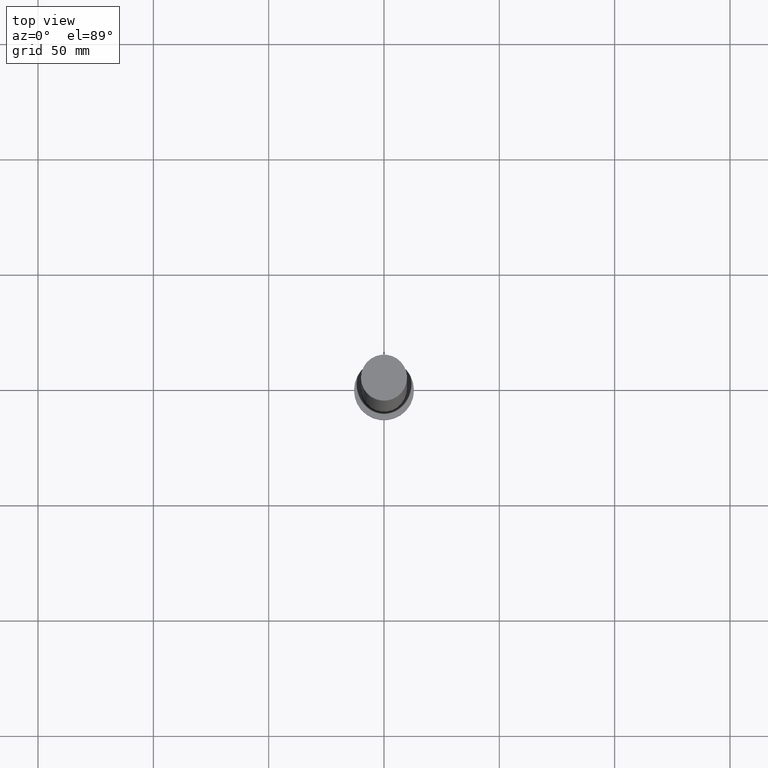
[diagram: clean part render]
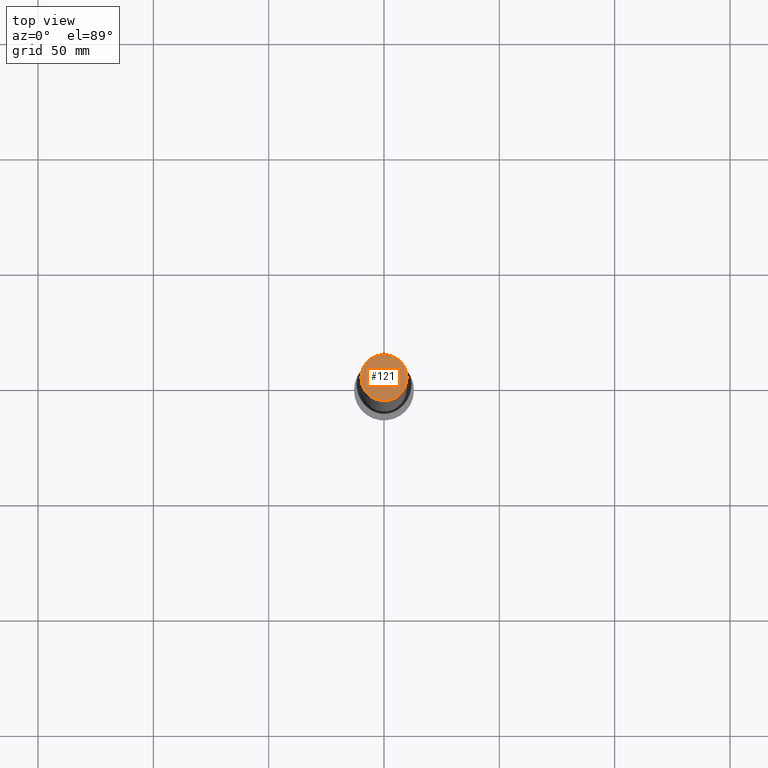
[diagram: same view with one face highlighted and labeled with its STEP entity id]
A machine part, top view. The second image highlights one B-rep face of the part: STEP entity #121.
In plain terms, the highlighted planar face has unit normal (0, 0, 1).
Its self-contained STEP definition (entity closure, byte-faithful):
#1 = CARTESIAN_POINT ( 'NONE',  ( -10.00000000000000178, 0.000000000000000000, 315.0000000000000000 ) ) ;
#11 = EDGE_CURVE ( 'NONE', #110, #94, #122, .T. ) ;
#25 = CARTESIAN_POINT ( 'NONE',  ( 0.000000000000000000, 0.000000000000000000, 315.0000000000000000 ) ) ;
#26 = ORIENTED_EDGE ( 'NONE', *, *, #11, .T. ) ;
#46 = DIRECTION ( 'NONE',  ( 0.000000000000000000, 0.000000000000000000, 1.000000000000000000 ) ) ;
#80 = CARTESIAN_POINT ( 'NONE',  ( 0.000000000000000000, 0.000000000000000000, 315.0000000000000000 ) ) ;
#94 = VERTEX_POINT ( 'NONE', #119 ) ;
#102 = CIRCLE ( 'NONE', #155, 10.00000000000000178 ) ;
#106 = ORIENTED_EDGE ( 'NONE', *, *, #168, .T. ) ;
#108 = EDGE_LOOP ( 'NONE', ( #26, #106 ) ) ;
#110 = VERTEX_POINT ( 'NONE', #1 ) ;
#119 = CARTESIAN_POINT ( 'NONE',  ( 10.00000000000000178, 1.224646799147353454E-15, 315.0000000000000000 ) ) ;
#121 = ADVANCED_FACE ( 'NONE', ( #174 ), #173, .T. ) ;
#122 = CIRCLE ( 'NONE', #253, 10.00000000000000178 ) ;
#123 = DIRECTION ( 'NONE',  ( 1.000000000000000000, 0.000000000000000000, -0.000000000000000000 ) ) ;
#127 = DIRECTION ( 'NONE',  ( 0.000000000000000000, 0.000000000000000000, 1.000000000000000000 ) ) ;
#142 = AXIS2_PLACEMENT_3D ( 'NONE', #80, #127, #123 ) ;
#144 = DIRECTION ( 'NONE',  ( 1.000000000000000000, 0.000000000000000000, 0.000000000000000000 ) ) ;
#155 = AXIS2_PLACEMENT_3D ( 'NONE', #25, #46, #144 ) ;
#163 = DIRECTION ( 'NONE',  ( 0.000000000000000000, 0.000000000000000000, 1.000000000000000000 ) ) ;
#168 = EDGE_CURVE ( 'NONE', #94, #110, #102, .T. ) ;
#173 = PLANE ( 'NONE',  #142 ) ;
#174 = FACE_OUTER_BOUND ( 'NONE', #108, .T. ) ;
#200 = CARTESIAN_POINT ( 'NONE',  ( 0.000000000000000000, 0.000000000000000000, 315.0000000000000000 ) ) ;
#238 = DIRECTION ( 'NONE',  ( 1.000000000000000000, 0.000000000000000000, 0.000000000000000000 ) ) ;
#253 = AXIS2_PLACEMENT_3D ( 'NONE', #200, #163, #238 ) ;